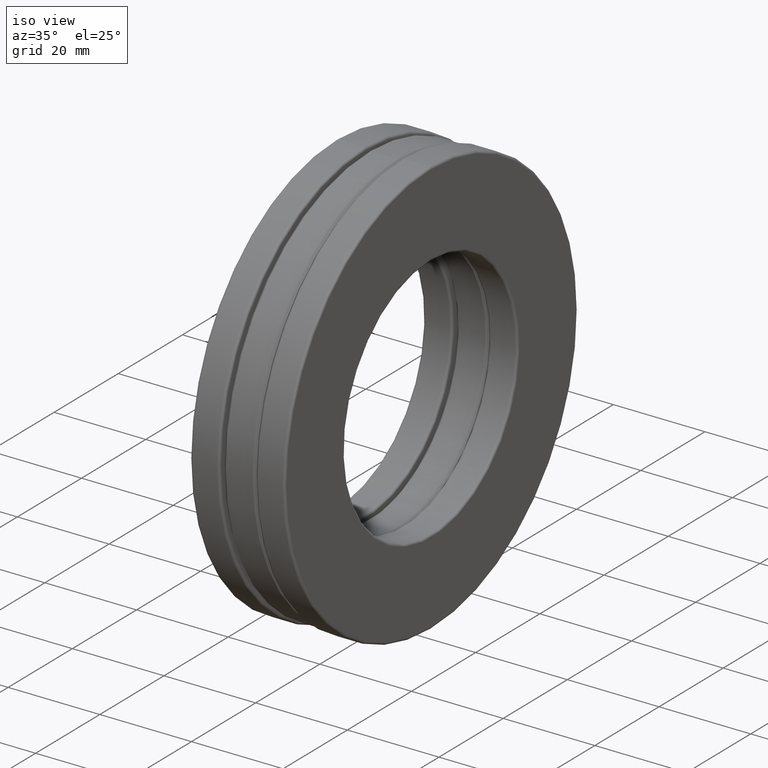
[diagram: clean part render]
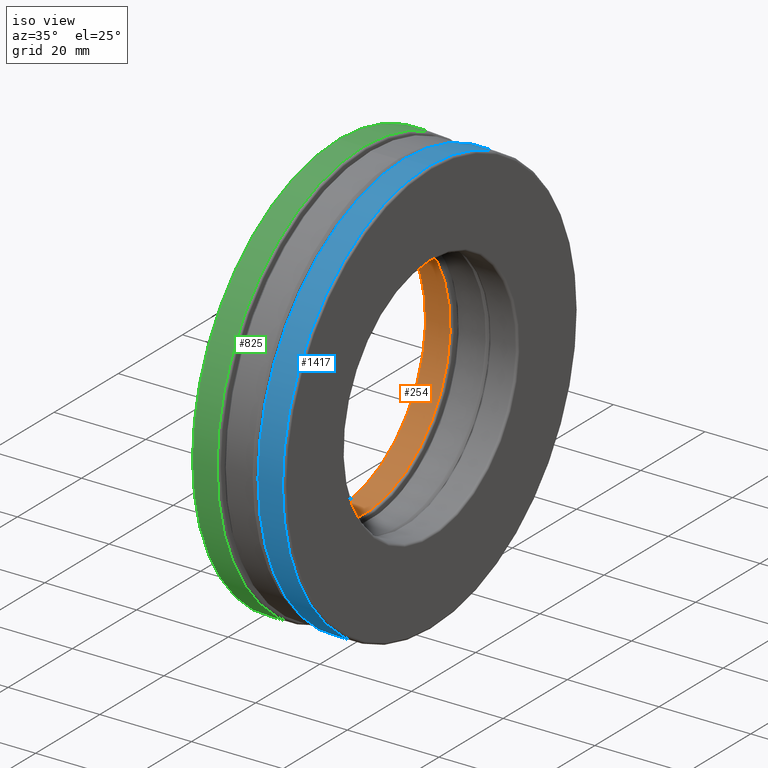
[diagram: same view with three faces highlighted in distinct colors, each labeled with its STEP entity id]
A machine part, iso view with three faces highlighted in distinct colors.
Their STEP definitions:

[orange] entity #254 — the highlighted cylindrical surface (bore or boss wall) has radius 26.9875 mm, axis along (-1, -0, -0).
#65 = CYLINDRICAL_SURFACE ( 'NONE', #1245, 1.062500000000000000 ) ;
#75 = CIRCLE ( 'NONE', #1228, 1.062500000000000000 ) ;
#91 = FACE_OUTER_BOUND ( 'NONE', #1120, .T. ) ;
#114 = DIRECTION ( 'NONE',  ( 0.0000000000000000000, 0.0000000000000000000, 1.000000000000000000 ) ) ;
#132 = ORIENTED_EDGE ( 'NONE', *, *, #465, .F. ) ;
#254 = ADVANCED_FACE ( 'NONE', ( #91, #546 ), #65, .F. ) ;
#465 = EDGE_CURVE ( 'NONE', #910, #910, #75, .T. ) ;
#467 = DIRECTION ( 'NONE',  ( -1.000000000000000000, -0.0000000000000000000, -0.0000000000000000000 ) ) ;
#485 = EDGE_CURVE ( 'NONE', #617, #617, #1018, .T. ) ;
#546 = FACE_OUTER_BOUND ( 'NONE', #1325, .T. ) ;
#562 = DIRECTION ( 'NONE',  ( -1.000000000000000000, -0.0000000000000000000, -0.0000000000000000000 ) ) ;
#575 = AXIS2_PLACEMENT_3D ( 'NONE', #620, #822, #685 ) ;
#585 = CARTESIAN_POINT ( 'NONE',  ( 0.0000000000000000000, 0.0000000000000000000, 0.0000000000000000000 ) ) ;
#617 = VERTEX_POINT ( 'NONE', #982 ) ;
#620 = CARTESIAN_POINT ( 'NONE',  ( -0.3860000000000000700, 0.0000000000000000000, 0.0000000000000000000 ) ) ;
#685 = DIRECTION ( 'NONE',  ( 0.0000000000000000000, 0.0000000000000000000, 1.000000000000000000 ) ) ;
#806 = CARTESIAN_POINT ( 'NONE',  ( -0.1759999999999998800, 0.0000000000000000000, 0.0000000000000000000 ) ) ;
#822 = DIRECTION ( 'NONE',  ( -1.000000000000000000, -0.0000000000000000000, -0.0000000000000000000 ) ) ;
#910 = VERTEX_POINT ( 'NONE', #1433 ) ;
#982 = CARTESIAN_POINT ( 'NONE',  ( -0.3860000000000000700, 0.0000000000000000000, 1.062500000000000000 ) ) ;
#1018 = CIRCLE ( 'NONE', #575, 1.062500000000000000 ) ;
#1120 = EDGE_LOOP ( 'NONE', ( #1467 ) ) ;
#1228 = AXIS2_PLACEMENT_3D ( 'NONE', #806, #562, #114 ) ;
#1245 = AXIS2_PLACEMENT_3D ( 'NONE', #585, #467, #1270 ) ;
#1270 = DIRECTION ( 'NONE',  ( 0.0000000000000000000, 0.0000000000000000000, 1.000000000000000000 ) ) ;
#1325 = EDGE_LOOP ( 'NONE', ( #132 ) ) ;
#1433 = CARTESIAN_POINT ( 'NONE',  ( -0.1759999999999998800, 0.0000000000000000000, 1.062500000000000000 ) ) ;
#1467 = ORIENTED_EDGE ( 'NONE', *, *, #485, .T. ) ;

[blue] entity #1417 — the highlighted cylindrical surface (bore or boss wall) has radius 45.6406 mm, axis along (-1, -0, -0).
#36 = DIRECTION ( 'NONE',  ( 0.0000000000000000000, 0.0000000000000000000, 1.000000000000000000 ) ) ;
#76 = AXIS2_PLACEMENT_3D ( 'NONE', #1269, #359, #479 ) ;
#84 = EDGE_LOOP ( 'NONE', ( #464 ) ) ;
#99 = VERTEX_POINT ( 'NONE', #1097 ) ;
#265 = VERTEX_POINT ( 'NONE', #1085 ) ;
#282 = FACE_OUTER_BOUND ( 'NONE', #548, .T. ) ;
#359 = DIRECTION ( 'NONE',  ( -1.000000000000000000, -0.0000000000000000000, -0.0000000000000000000 ) ) ;
#434 = CYLINDRICAL_SURFACE ( 'NONE', #1377, 1.796875000000000000 ) ;
#464 = ORIENTED_EDGE ( 'NONE', *, *, #1347, .F. ) ;
#479 = DIRECTION ( 'NONE',  ( 0.0000000000000000000, 0.0000000000000000000, 1.000000000000000000 ) ) ;
#496 = CARTESIAN_POINT ( 'NONE',  ( 0.1759999999999995500, 0.0000000000000000000, 0.0000000000000000000 ) ) ;
#502 = DIRECTION ( 'NONE',  ( 0.0000000000000000000, 0.0000000000000000000, 1.000000000000000000 ) ) ;
#548 = EDGE_LOOP ( 'NONE', ( #702 ) ) ;
#633 = EDGE_CURVE ( 'NONE', #265, #265, #1462, .T. ) ;
#702 = ORIENTED_EDGE ( 'NONE', *, *, #633, .T. ) ;
#990 = FACE_OUTER_BOUND ( 'NONE', #84, .T. ) ;
#1065 = AXIS2_PLACEMENT_3D ( 'NONE', #496, #1194, #502 ) ;
#1068 = DIRECTION ( 'NONE',  ( -1.000000000000000000, -0.0000000000000000000, -0.0000000000000000000 ) ) ;
#1085 = CARTESIAN_POINT ( 'NONE',  ( 0.3860000000000006200, 0.0000000000000000000, 1.796875000000000000 ) ) ;
#1097 = CARTESIAN_POINT ( 'NONE',  ( 0.1759999999999995500, 0.0000000000000000000, 1.796875000000000000 ) ) ;
#1194 = DIRECTION ( 'NONE',  ( -1.000000000000000000, -0.0000000000000000000, -0.0000000000000000000 ) ) ;
#1269 = CARTESIAN_POINT ( 'NONE',  ( 0.3860000000000006200, 0.0000000000000000000, 0.0000000000000000000 ) ) ;
#1281 = CARTESIAN_POINT ( 'NONE',  ( 0.0000000000000000000, 0.0000000000000000000, 0.0000000000000000000 ) ) ;
#1298 = CIRCLE ( 'NONE', #1065, 1.796875000000000000 ) ;
#1347 = EDGE_CURVE ( 'NONE', #99, #99, #1298, .T. ) ;
#1377 = AXIS2_PLACEMENT_3D ( 'NONE', #1281, #1068, #36 ) ;
#1417 = ADVANCED_FACE ( 'NONE', ( #990, #282 ), #434, .T. ) ;
#1462 = CIRCLE ( 'NONE', #76, 1.796875000000000000 ) ;

[green] entity #825 — the highlighted cylindrical surface (bore or boss wall) has radius 45.6406 mm, axis along (-1, -0, -0).
#14 = CARTESIAN_POINT ( 'NONE',  ( -0.1759999999999994900, 0.0000000000000000000, 0.0000000000000000000 ) ) ;
#88 = CYLINDRICAL_SURFACE ( 'NONE', #629, 1.796875000000000000 ) ;
#192 = EDGE_LOOP ( 'NONE', ( #505 ) ) ;
#217 = CIRCLE ( 'NONE', #933, 1.796875000000000000 ) ;
#298 = VERTEX_POINT ( 'NONE', #641 ) ;
#379 = DIRECTION ( 'NONE',  ( -1.000000000000000000, -0.0000000000000000000, -0.0000000000000000000 ) ) ;
#395 = ORIENTED_EDGE ( 'NONE', *, *, #522, .F. ) ;
#439 = DIRECTION ( 'NONE',  ( 0.0000000000000000000, 0.0000000000000000000, 1.000000000000000000 ) ) ;
#488 = CARTESIAN_POINT ( 'NONE',  ( 0.0000000000000000000, 0.0000000000000000000, 0.0000000000000000000 ) ) ;
#505 = ORIENTED_EDGE ( 'NONE', *, *, #751, .T. ) ;
#522 = EDGE_CURVE ( 'NONE', #298, #298, #815, .T. ) ;
#561 = DIRECTION ( 'NONE',  ( -1.000000000000000000, -0.0000000000000000000, -0.0000000000000000000 ) ) ;
#629 = AXIS2_PLACEMENT_3D ( 'NONE', #488, #379, #858 ) ;
#641 = CARTESIAN_POINT ( 'NONE',  ( -0.3860000000000003400, 0.0000000000000000000, 1.796875000000000000 ) ) ;
#649 = VERTEX_POINT ( 'NONE', #1104 ) ;
#751 = EDGE_CURVE ( 'NONE', #649, #649, #217, .T. ) ;
#813 = DIRECTION ( 'NONE',  ( -1.000000000000000000, -0.0000000000000000000, -0.0000000000000000000 ) ) ;
#815 = CIRCLE ( 'NONE', #1279, 1.796875000000000000 ) ;
#825 = ADVANCED_FACE ( 'NONE', ( #1379, #1308 ), #88, .T. ) ;
#858 = DIRECTION ( 'NONE',  ( 0.0000000000000000000, 0.0000000000000000000, 1.000000000000000000 ) ) ;
#926 = DIRECTION ( 'NONE',  ( 0.0000000000000000000, 0.0000000000000000000, 1.000000000000000000 ) ) ;
#933 = AXIS2_PLACEMENT_3D ( 'NONE', #14, #813, #926 ) ;
#1104 = CARTESIAN_POINT ( 'NONE',  ( -0.1759999999999994900, 0.0000000000000000000, 1.796875000000000000 ) ) ;
#1236 = CARTESIAN_POINT ( 'NONE',  ( -0.3860000000000003400, 0.0000000000000000000, 0.0000000000000000000 ) ) ;
#1279 = AXIS2_PLACEMENT_3D ( 'NONE', #1236, #561, #439 ) ;
#1308 = FACE_OUTER_BOUND ( 'NONE', #192, .T. ) ;
#1319 = EDGE_LOOP ( 'NONE', ( #395 ) ) ;
#1379 = FACE_OUTER_BOUND ( 'NONE', #1319, .T. ) ;